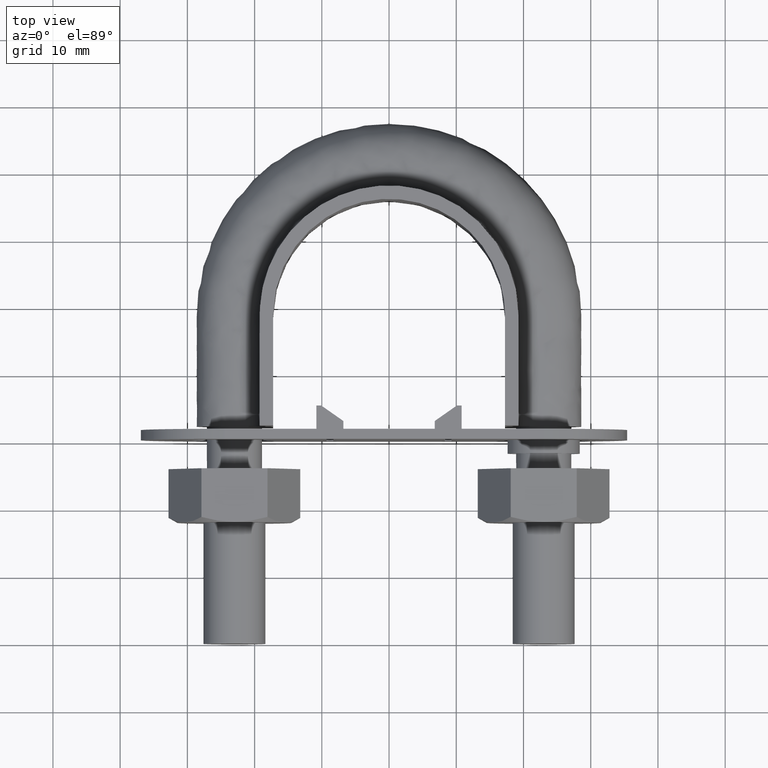
[diagram: clean part render]
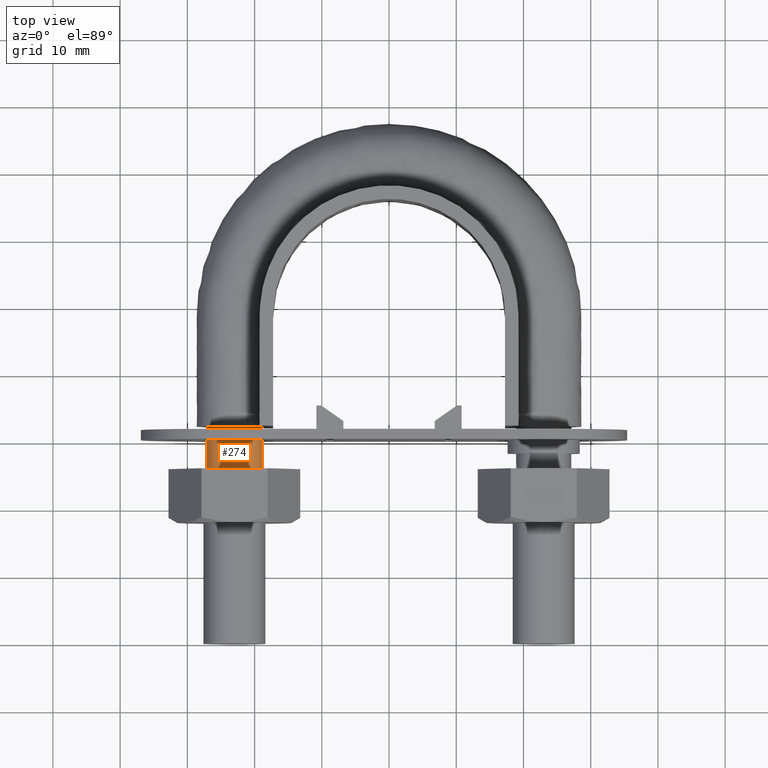
[diagram: same view with one face highlighted and labeled with its STEP entity id]
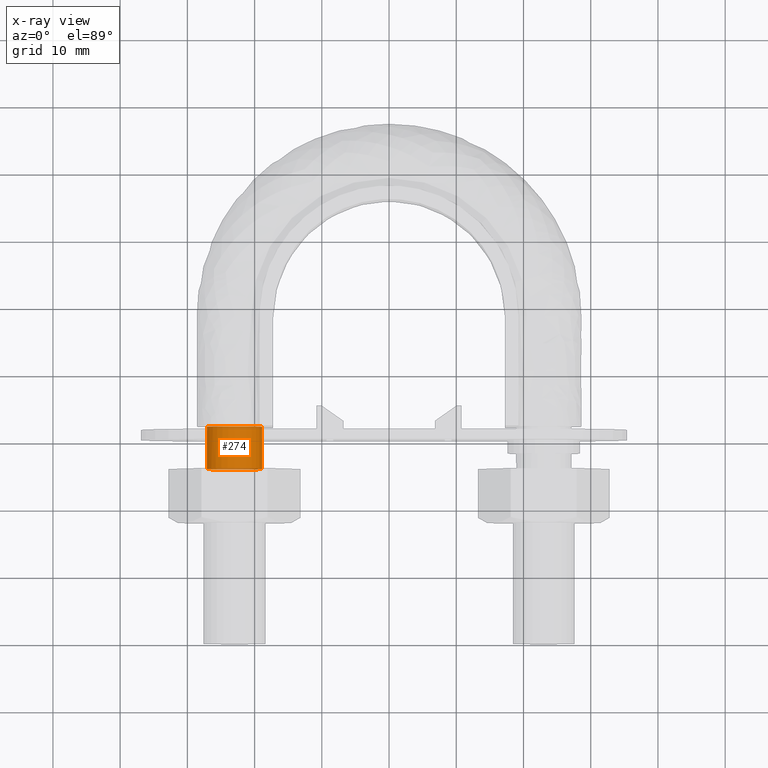
[diagram: x-ray of the same camera — body ghosted, the highlighted face saturated]
A machine part, top view. The second image highlights one B-rep face of the part: STEP entity #274.
The next image is the same camera in x-ray: the body ghosted, the highlighted face saturated — about 2% of this face is hidden behind the body in this view.
In plain terms, the highlighted cylindrical surface (bore or boss wall) has radius 4.1 mm, axis along (0, 1, 0).
Its self-contained STEP definition (entity closure, byte-faithful):
#274 = ADVANCED_FACE( '', ( #396, #397 ), #398, .T. );
#396 = FACE_OUTER_BOUND( '', #1325, .T. );
#397 = FACE_OUTER_BOUND( '', #1326, .T. );
#398 = CYLINDRICAL_SURFACE( '', #1327, 4.10000000000000 );
#1325 = EDGE_LOOP( '', ( #1768, #1769, #1770, #1771, #1772, #1773, #1774 ) );
#1326 = EDGE_LOOP( '', ( #1775 ) );
#1327 = AXIS2_PLACEMENT_3D( '', #1776, #1777, #1778 );
#1768 = ORIENTED_EDGE( '', *, *, #2531, .T. );
#1769 = ORIENTED_EDGE( '', *, *, #2532, .T. );
#1770 = ORIENTED_EDGE( '', *, *, #2533, .T. );
#1771 = ORIENTED_EDGE( '', *, *, #2534, .T. );
#1772 = ORIENTED_EDGE( '', *, *, #2535, .T. );
#1773 = ORIENTED_EDGE( '', *, *, #2536, .T. );
#1774 = ORIENTED_EDGE( '', *, *, #2537, .T. );
#1775 = ORIENTED_EDGE( '', *, *, #2538, .T. );
#1776 = CARTESIAN_POINT( '', ( -23.0000000000000, 32.3000000000000, 9.99584936307515E-015 ) );
#1777 = DIRECTION( '', ( 2.44921270764475E-016, 1.00000000000000, 3.06151588455594E-016 ) );
#1778 = DIRECTION( '', ( 1.00000000000000, -2.44921270764475E-016, -3.74915180455534E-032 ) );
#2531 = EDGE_CURVE( '', #2775, #2776, #2777, .T. );
#2532 = EDGE_CURVE( '', #2776, #2778, #2779, .T. );
#2533 = EDGE_CURVE( '', #2778, #2780, #2781, .T. );
#2534 = EDGE_CURVE( '', #2780, #2782, #2783, .T. );
#2535 = EDGE_CURVE( '', #2782, #2784, #2785, .T. );
#2536 = EDGE_CURVE( '', #2784, #2786, #2787, .T. );
#2537 = EDGE_CURVE( '', #2786, #2775, #2788, .T. );
#2538 = EDGE_CURVE( '', #2789, #2789, #2790, .T. );
#2775 = VERTEX_POINT( '', #3311 );
#2776 = VERTEX_POINT( '', #3312 );
#2777 = CIRCLE( '', #3313, 4.10000000000000 );
#2778 = VERTEX_POINT( '', #3314 );
#2779 = CIRCLE( '', #3315, 4.10000000000000 );
#2780 = VERTEX_POINT( '', #3316 );
#2781 = CIRCLE( '', #3317, 4.10000000000000 );
#2782 = VERTEX_POINT( '', #3318 );
#2783 = CIRCLE( '', #3319, 4.10000000000000 );
#2784 = VERTEX_POINT( '', #3320 );
#2785 = CIRCLE( '', #3321, 4.10000000000000 );
#2786 = VERTEX_POINT( '', #3322 );
#2787 = CIRCLE( '', #3323, 4.10000000000000 );
#2788 = CIRCLE( '', #3324, 4.10000000000000 );
#2789 = VERTEX_POINT( '', #3325 );
#2790 = CIRCLE( '', #3326, 4.10000000000000 );
#3311 = CARTESIAN_POINT( '', ( -18.9000000000000, 32.3000000000000, 5.45788039772064E-014 ) );
#3312 = CARTESIAN_POINT( '', ( -20.4436918123972, 32.3000000000000, 3.20550907813328 ) );
#3313 = AXIS2_PLACEMENT_3D( '', #3949, #3950, #3951 );
#3314 = CARTESIAN_POINT( '', ( -23.9123358292208, 32.3000000000000, 3.99720443994550 ) );
#3315 = AXIS2_PLACEMENT_3D( '', #3952, #3953, #3954 );
#3316 = CARTESIAN_POINT( '', ( -26.6939723583999, 32.3000000000000, 1.77892333038209 ) );
#3317 = AXIS2_PLACEMENT_3D( '', #3955, #3956, #3957 );
#3318 = CARTESIAN_POINT( '', ( -26.6939723583911, 32.3000000000000, -1.77892333040036 ) );
#3319 = AXIS2_PLACEMENT_3D( '', #3958, #3959, #3960 );
#3320 = CARTESIAN_POINT( '', ( -23.9123358292208, 32.3000000000000, -3.99720443994549 ) );
#3321 = AXIS2_PLACEMENT_3D( '', #3961, #3962, #3963 );
#3322 = CARTESIAN_POINT( '', ( -20.4436918123793, 32.3000000000000, -3.20550907811900 ) );
#3323 = AXIS2_PLACEMENT_3D( '', #3964, #3965, #3966 );
#3324 = AXIS2_PLACEMENT_3D( '', #3967, #3968, #3969 );
#3325 = CARTESIAN_POINT( '', ( -23.0000000000000, 26.0000000000000, 4.10000000000001 ) );
#3326 = AXIS2_PLACEMENT_3D( '', #3970, #3971, #3972 );
#3949 = CARTESIAN_POINT( '', ( -23.0000000000000, 32.3000000000000, 9.99584936307515E-015 ) );
#3950 = DIRECTION( '', ( -2.44921270764475E-016, -1.00000000000000, -3.06151588455594E-016 ) );
#3951 = DIRECTION( '', ( 1.00000000000000, -2.44921270764475E-016, -3.74915180455534E-032 ) );
#3952 = CARTESIAN_POINT( '', ( -23.0000000000000, 32.3000000000000, 9.99584936307515E-015 ) );
#3953 = DIRECTION( '', ( -2.44921270764475E-016, -1.00000000000000, -3.06151588455594E-016 ) );
#3954 = DIRECTION( '', ( 1.00000000000000, -2.44921270764475E-016, -3.74915180455534E-032 ) );
#3955 = CARTESIAN_POINT( '', ( -23.0000000000000, 32.3000000000000, 9.99584936307515E-015 ) );
#3956 = DIRECTION( '', ( -2.44921270764475E-016, -1.00000000000000, -3.06151588455594E-016 ) );
#3957 = DIRECTION( '', ( 1.00000000000000, -2.44921270764475E-016, -3.74915180455534E-032 ) );
#3958 = CARTESIAN_POINT( '', ( -23.0000000000000, 32.3000000000000, 9.99584936307515E-015 ) );
#3959 = DIRECTION( '', ( -2.44921270764475E-016, -1.00000000000000, -3.06151588455594E-016 ) );
#3960 = DIRECTION( '', ( 1.00000000000000, -2.44921270764475E-016, -3.74915180455534E-032 ) );
#3961 = CARTESIAN_POINT( '', ( -23.0000000000000, 32.3000000000000, 9.99584936307515E-015 ) );
#3962 = DIRECTION( '', ( -2.44921270764475E-016, -1.00000000000000, -3.06151588455594E-016 ) );
#3963 = DIRECTION( '', ( 1.00000000000000, -2.44921270764475E-016, -3.74915180455534E-032 ) );
#3964 = CARTESIAN_POINT( '', ( -23.0000000000000, 32.3000000000000, 9.99584936307515E-015 ) );
#3965 = DIRECTION( '', ( -2.44921270764475E-016, -1.00000000000000, -3.06151588455594E-016 ) );
#3966 = DIRECTION( '', ( 1.00000000000000, -2.44921270764475E-016, -3.74915180455534E-032 ) );
#3967 = CARTESIAN_POINT( '', ( -23.0000000000000, 32.3000000000000, 9.99584936307515E-015 ) );
#3968 = DIRECTION( '', ( -2.44921270764475E-016, -1.00000000000000, -3.06151588455594E-016 ) );
#3969 = DIRECTION( '', ( 1.00000000000000, -2.44921270764475E-016, -3.74915180455534E-032 ) );
#3970 = CARTESIAN_POINT( '', ( -23.0000000000000, 26.0000000000000, 8.06709435580491E-015 ) );
#3971 = DIRECTION( '', ( 2.44921270764475E-016, 1.00000000000000, 3.06151588455594E-016 ) );
#3972 = DIRECTION( '', ( -3.74915180455534E-032, -3.06151588455594E-016, 1.00000000000000 ) );